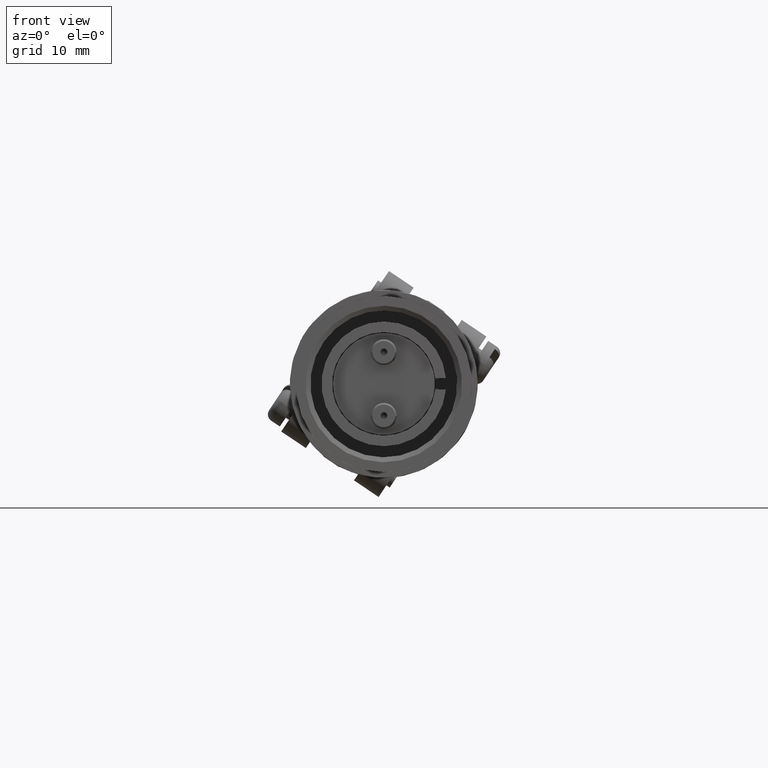
[diagram: clean part render]
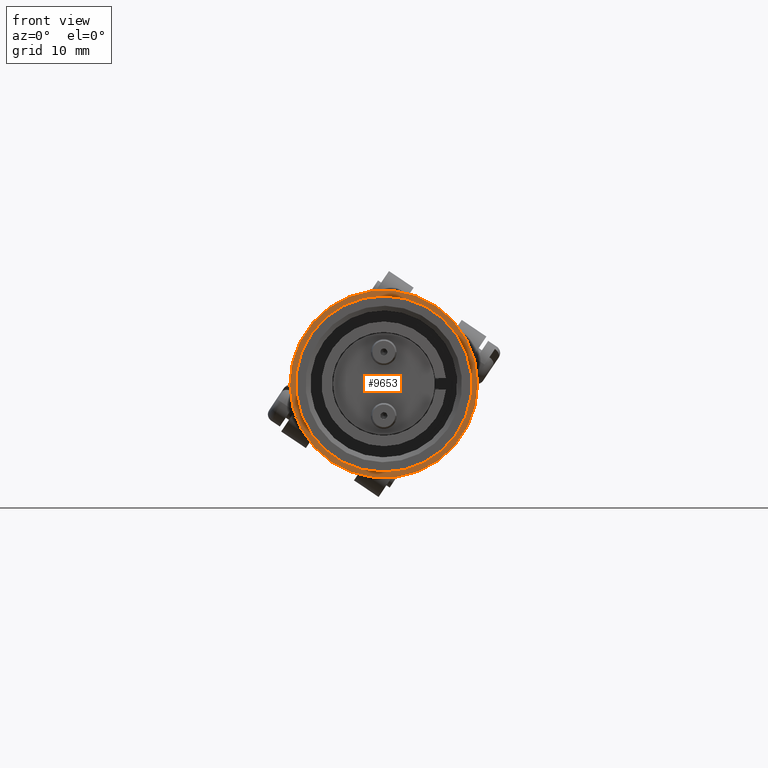
[diagram: same view with one face highlighted and labeled with its STEP entity id]
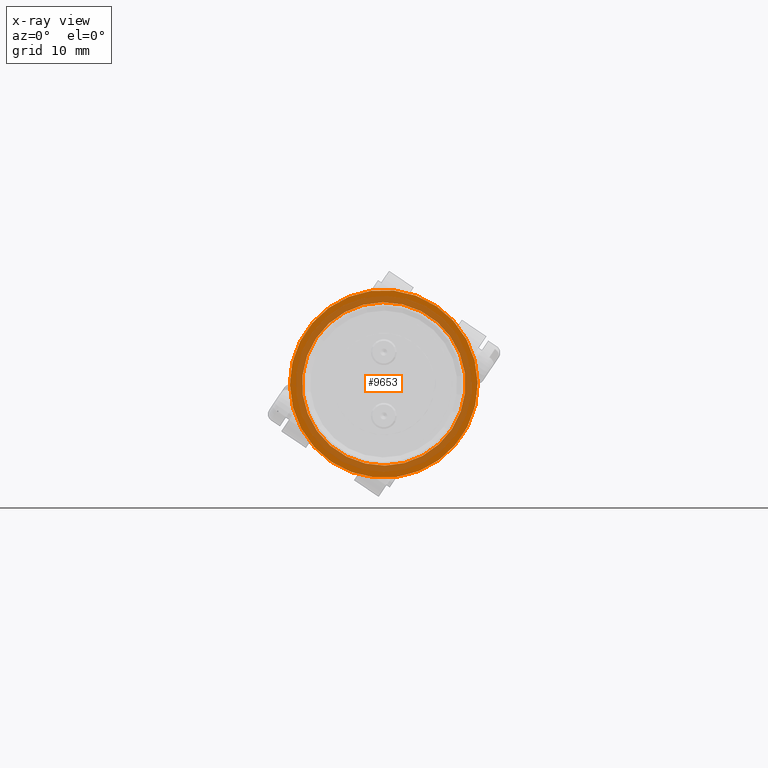
[diagram: x-ray of the same camera — body ghosted, the highlighted face saturated]
A machine part, front view. The second image highlights one B-rep face of the part: STEP entity #9653.
The next image is the same camera in x-ray: the body ghosted, the highlighted face saturated — about 50% of this face is hidden behind the body in this view.
In plain terms, the highlighted planar face has unit normal (-0, -1, -0).
Its self-contained STEP definition (entity closure, byte-faithful):
#372 = EDGE_CURVE ( 'NONE', #4510, #21432, #785, .T. ) ;
#441 = VERTEX_POINT ( 'NONE', #19347 ) ;
#785 = CIRCLE ( 'NONE', #2057, 0.5220853727312375600 ) ;
#1543 = AXIS2_PLACEMENT_3D ( 'NONE', #13883, #13885, #13887 ) ;
#1569 = AXIS2_PLACEMENT_3D ( 'NONE', #14355, #14357, #14358 ) ;
#2057 = AXIS2_PLACEMENT_3D ( 'NONE', #19512, #19506, #19510 ) ;
#2546 = AXIS2_PLACEMENT_3D ( 'NONE', #4981, #4982, #4983 ) ;
#2552 = AXIS2_PLACEMENT_3D ( 'NONE', #4998, #4999, #5000 ) ;
#3525 = CIRCLE ( 'NONE', #1543, 0.5999999999999996400 ) ;
#3661 = CIRCLE ( 'NONE', #1569, 0.5999999999999996400 ) ;
#4510 = VERTEX_POINT ( 'NONE', #6356 ) ;
#4545 = VERTEX_POINT ( 'NONE', #6367 ) ;
#4981 = CARTESIAN_POINT ( 'NONE',  ( 0.0000000000000000000, -1.404798769032926700E-030, 2.791558866024211200 ) ) ;
#4982 = DIRECTION ( 'NONE',  ( 0.0000000000000000000, 0.0000000000000000000, 1.000000000000000000 ) ) ;
#4983 = DIRECTION ( 'NONE',  ( 1.000000000000000000, 0.0000000000000000000, 0.0000000000000000000 ) ) ;
#4997 = PLANE ( 'NONE',  #2552 ) ;
#4998 = CARTESIAN_POINT ( 'NONE',  ( -0.5999999999999996400, 0.0000000000000000000, 2.791558866024211200 ) ) ;
#4999 = DIRECTION ( 'NONE',  ( 0.0000000000000000000, 0.0000000000000000000, 1.000000000000000000 ) ) ;
#5000 = DIRECTION ( 'NONE',  ( 1.000000000000000000, 0.0000000000000000000, -0.0000000000000000000 ) ) ;
#5397 = CIRCLE ( 'NONE', #2546, 0.5220853727312375600 ) ;
#5403 = FACE_OUTER_BOUND ( 'NONE', #10987, .T. ) ;
#5410 = FACE_BOUND ( 'NONE', #11139, .T. ) ;
#6356 = CARTESIAN_POINT ( 'NONE',  ( 0.0000000000000000000, 0.5220853727312375600, 2.791558866024211200 ) ) ;
#6367 = CARTESIAN_POINT ( 'NONE',  ( 0.5999999999999996400, 7.347880794884115300E-017, 2.791558866024211200 ) ) ;
#9647 = EDGE_CURVE ( 'NONE', #21432, #4510, #5397, .T. ) ;
#9653 = ADVANCED_FACE ( 'NONE', ( #5410, #5403 ), #4997, .T. ) ;
#10987 = EDGE_LOOP ( 'NONE', ( #20741, #20739 ) ) ;
#11139 = EDGE_LOOP ( 'NONE', ( #20745, #20743 ) ) ;
#13883 = CARTESIAN_POINT ( 'NONE',  ( 0.0000000000000000000, 0.0000000000000000000, 2.791558866024211200 ) ) ;
#13885 = DIRECTION ( 'NONE',  ( -0.0000000000000000000, -0.0000000000000000000, -1.000000000000000000 ) ) ;
#13887 = DIRECTION ( 'NONE',  ( -1.000000000000000000, 0.0000000000000000000, 0.0000000000000000000 ) ) ;
#14355 = CARTESIAN_POINT ( 'NONE',  ( 0.0000000000000000000, 0.0000000000000000000, 2.791558866024211200 ) ) ;
#14357 = DIRECTION ( 'NONE',  ( -0.0000000000000000000, -0.0000000000000000000, -1.000000000000000000 ) ) ;
#14358 = DIRECTION ( 'NONE',  ( -1.000000000000000000, 0.0000000000000000000, 0.0000000000000000000 ) ) ;
#15894 = EDGE_CURVE ( 'NONE', #4545, #441, #3525, .T. ) ;
#16820 = EDGE_CURVE ( 'NONE', #441, #4545, #3661, .T. ) ;
#17648 = CARTESIAN_POINT ( 'NONE',  ( 6.393701805969628600E-017, -0.5220853727312375600, 2.791558866024211200 ) ) ;
#19347 = CARTESIAN_POINT ( 'NONE',  ( -0.5999999999999996400, 0.0000000000000000000, 2.791558866024211200 ) ) ;
#19506 = DIRECTION ( 'NONE',  ( 0.0000000000000000000, 0.0000000000000000000, 1.000000000000000000 ) ) ;
#19510 = DIRECTION ( 'NONE',  ( 1.000000000000000000, 0.0000000000000000000, 0.0000000000000000000 ) ) ;
#19512 = CARTESIAN_POINT ( 'NONE',  ( 0.0000000000000000000, -1.404798769032926700E-030, 2.791558866024211200 ) ) ;
#20739 = ORIENTED_EDGE ( 'NONE', *, *, #15894, .F. ) ;
#20741 = ORIENTED_EDGE ( 'NONE', *, *, #16820, .F. ) ;
#20743 = ORIENTED_EDGE ( 'NONE', *, *, #9647, .F. ) ;
#20745 = ORIENTED_EDGE ( 'NONE', *, *, #372, .F. ) ;
#21432 = VERTEX_POINT ( 'NONE', #17648 ) ;